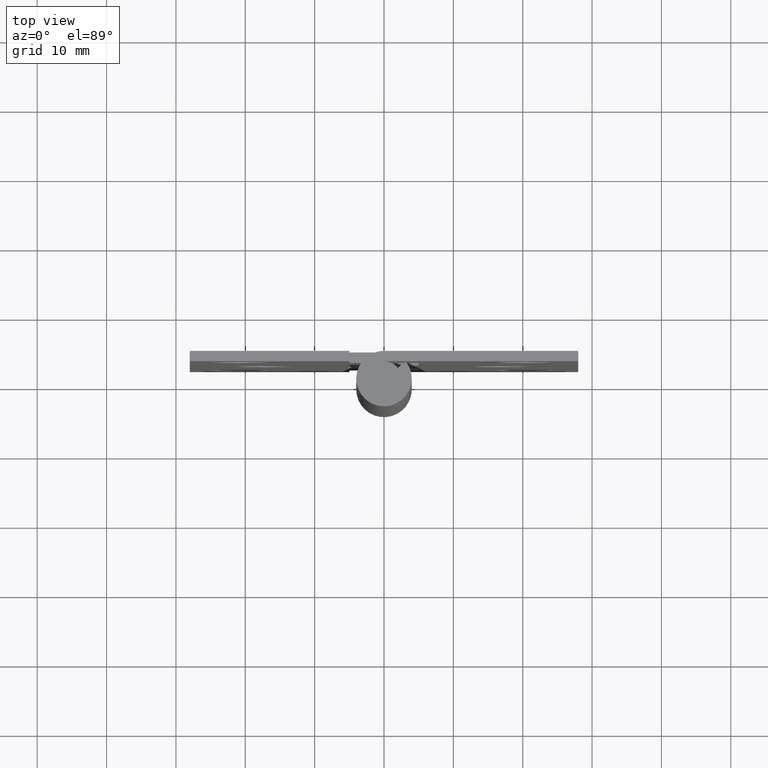
[diagram: clean part render]
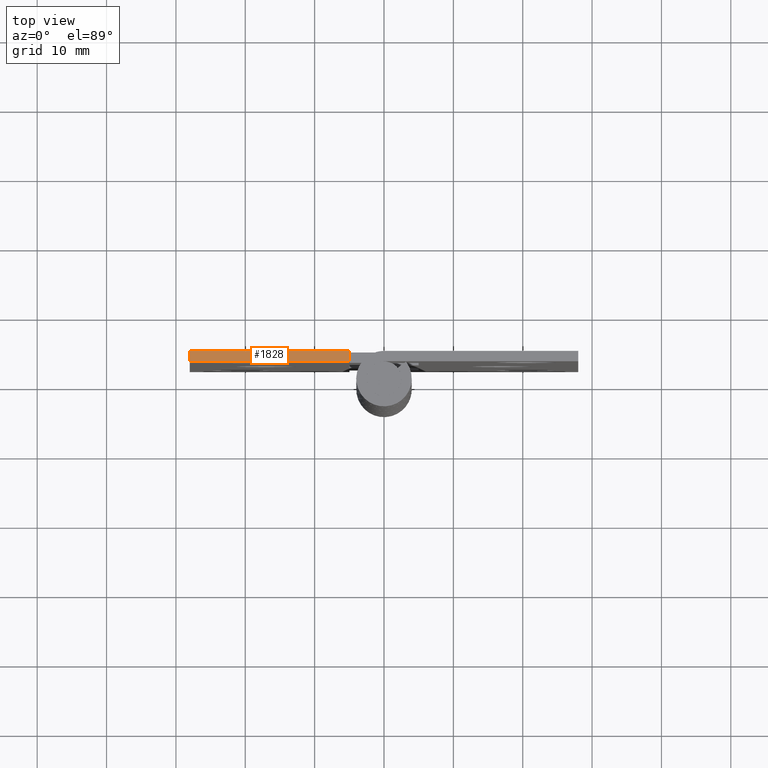
[diagram: same view with one face highlighted and labeled with its STEP entity id]
A machine part, top view. The second image highlights one B-rep face of the part: STEP entity #1828.
In plain terms, the highlighted face is a freeform B-spline surface patch.
Its self-contained STEP definition (entity closure, byte-faithful):
#1284=CARTESIAN_POINT('',(-5.0,2.499999999999945,89.000008000000008));
#1285=VERTEX_POINT('',#1284);
#1300=CARTESIAN_POINT('',(-5.0,4.0,89.000008000000008));
#1301=VERTEX_POINT('',#1300);
#1307=CARTESIAN_POINT('',(-5.0,4.0,89.000008000000008));
#1308=CARTESIAN_POINT('',(-5.0,2.499999999999945,89.000008000000008));
#1309=QUASI_UNIFORM_CURVE('',1,(#1307,#1308),.UNSPECIFIED.,.F.,.U.);
#1310=EDGE_CURVE('',#1301,#1285,#1309,.T.);
#1672=CARTESIAN_POINT('',(-28.0,2.500000000000000,89.000008000000008));
#1673=VERTEX_POINT('',#1672);
#1674=CARTESIAN_POINT('',(-28.0,4.0,89.000008000000008));
#1675=VERTEX_POINT('',#1674);
#1676=CARTESIAN_POINT('',(-28.0,2.500000000000000,89.000008000000008));
#1677=CARTESIAN_POINT('',(-28.0,4.0,89.000008000000008));
#1678=QUASI_UNIFORM_CURVE('',1,(#1676,#1677),.UNSPECIFIED.,.F.,.U.);
#1679=EDGE_CURVE('',#1673,#1675,#1678,.T.);
#1809=CARTESIAN_POINT('',(-29.148849955421539,2.425075002907234,89.000008000000008));
#1810=CARTESIAN_POINT('',(-3.851149427670391,2.425075002907234,89.000008000000008));
#1811=CARTESIAN_POINT('',(-29.148849955421539,4.074925037325847,89.000008000000008));
#1812=CARTESIAN_POINT('',(-3.851149427670390,4.074925037325847,89.000008000000008));
#1813=B_SPLINE_SURFACE_WITH_KNOTS('',1,1,((#1809,#1811),(#1810,#1812)),.UNSPECIFIED.,.F.,.F.,.U.,(2,2),(2,2),(0.0,25.297700527751150),(0.041708334948495,0.958291687403247),.UNSPECIFIED.);
#1814=ORIENTED_EDGE('',*,*,#1310,.F.);
#1815=CARTESIAN_POINT('',(-28.0,4.0,89.000008000000008));
#1816=CARTESIAN_POINT('',(-5.0,4.0,89.000008000000008));
#1817=QUASI_UNIFORM_CURVE('',1,(#1815,#1816),.UNSPECIFIED.,.F.,.U.);
#1818=EDGE_CURVE('',#1675,#1301,#1817,.T.);
#1819=ORIENTED_EDGE('',*,*,#1818,.F.);
#1820=ORIENTED_EDGE('',*,*,#1679,.F.);
#1821=CARTESIAN_POINT('',(-5.0,2.499999999999945,89.000008000000008));
#1822=CARTESIAN_POINT('',(-28.0,2.500000000000000,89.000008000000008));
#1823=QUASI_UNIFORM_CURVE('',1,(#1821,#1822),.UNSPECIFIED.,.F.,.U.);
#1824=EDGE_CURVE('',#1285,#1673,#1823,.T.);
#1825=ORIENTED_EDGE('',*,*,#1824,.F.);
#1826=EDGE_LOOP('',(#1814,#1819,#1820,#1825));
#1827=FACE_OUTER_BOUND('',#1826,.T.);
#1828=ADVANCED_FACE('',(#1827),#1813,.T.);